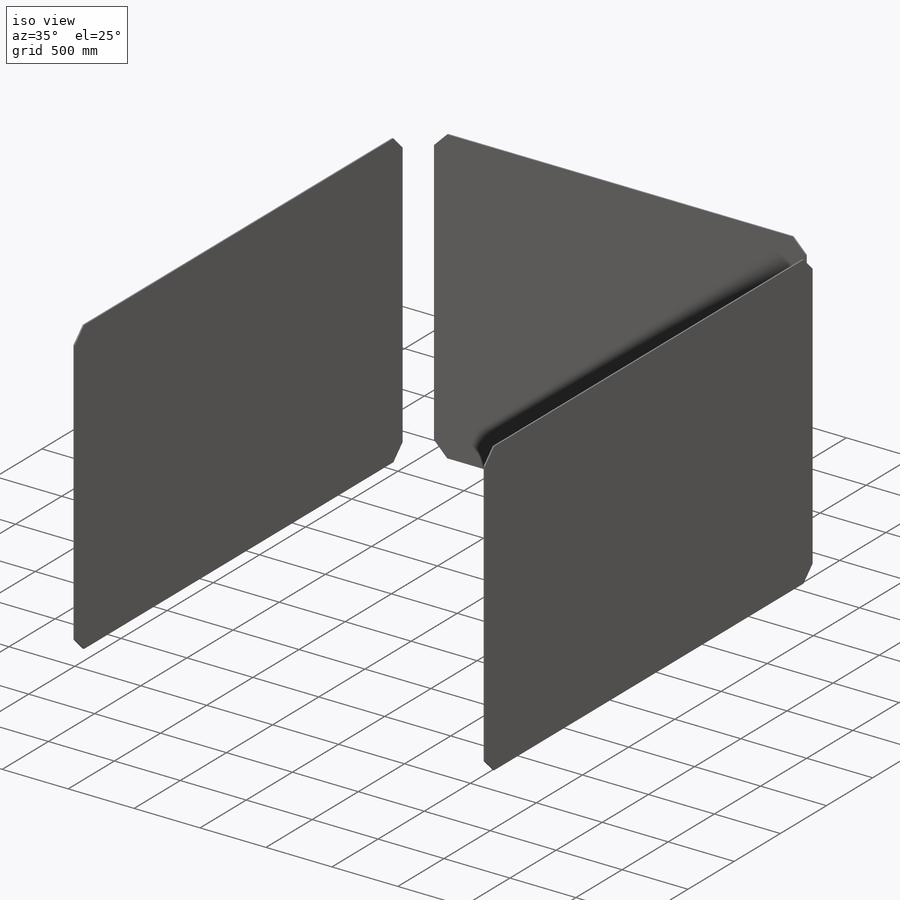
[diagram: iso view]
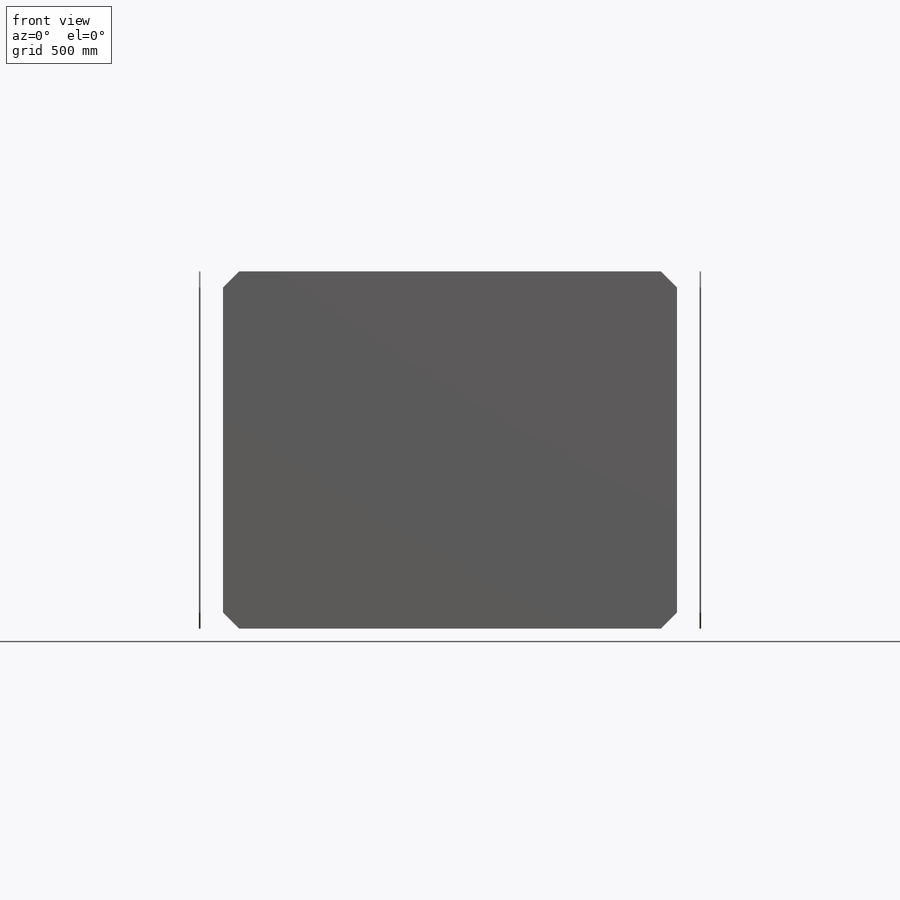
[diagram: front view]
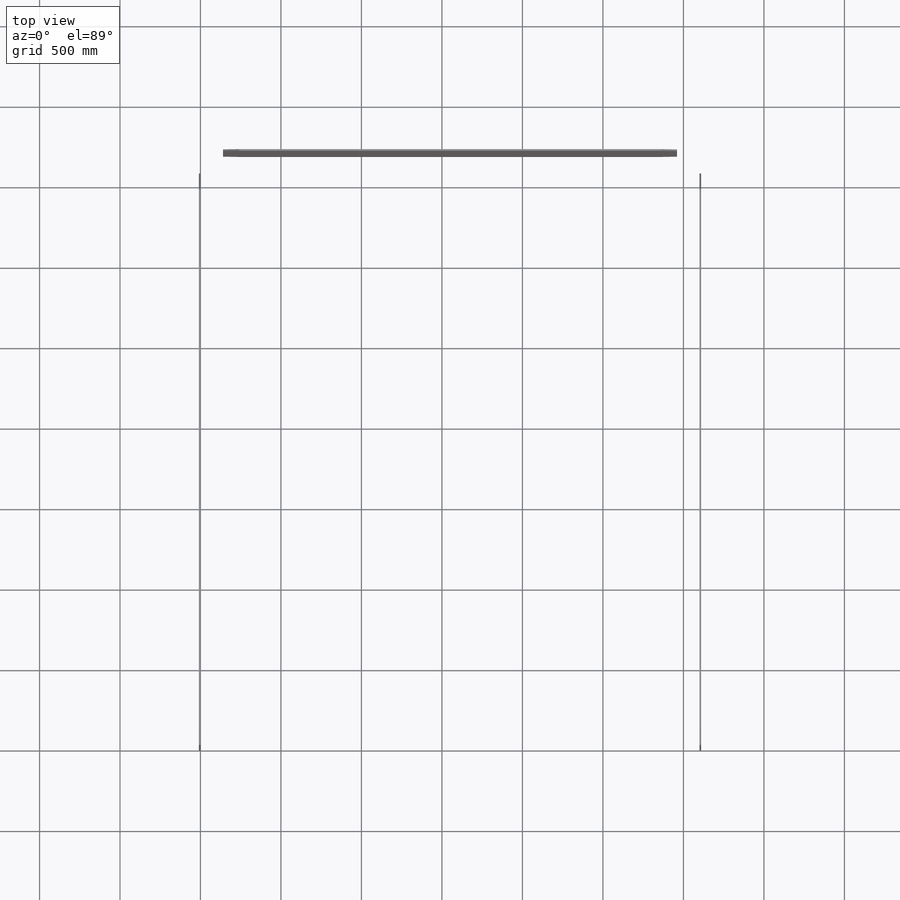
[diagram: top view]
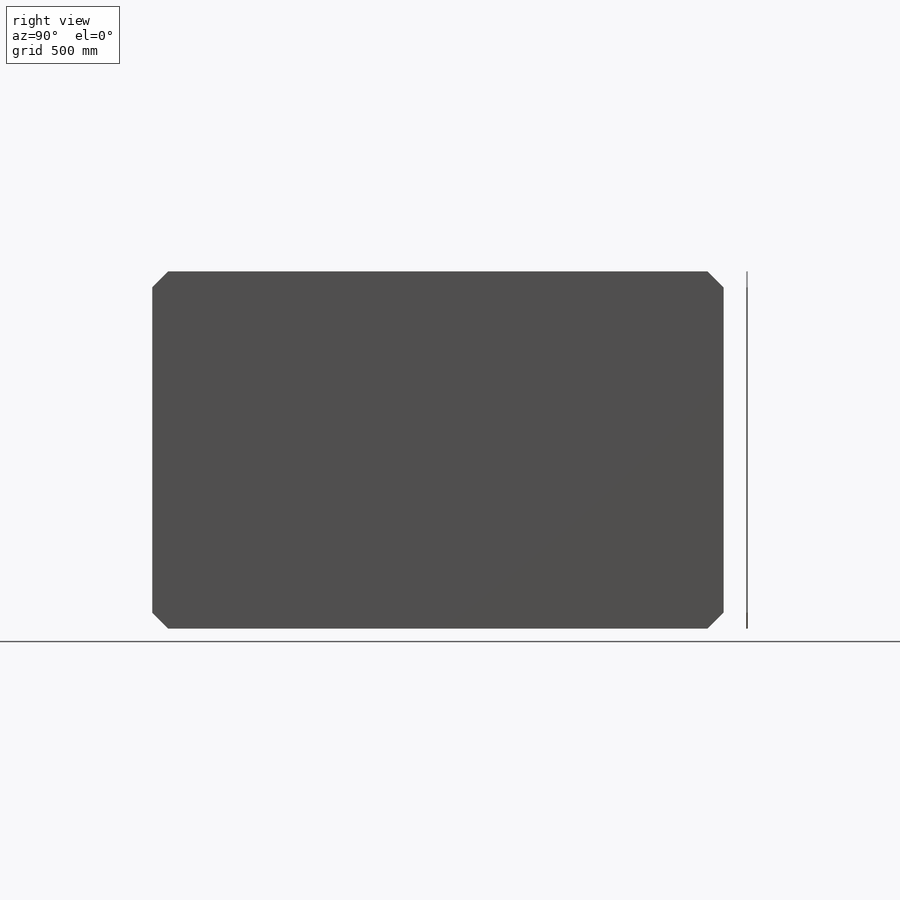
[diagram: right view]
SOLIDWORKS PART (.sldprt)
format: sldprt  version: not decoded by parser v0  size: 410,112 bytes
history: native  units: mm
features: sketch x4, plane x3, chamfer x3, cut_extrude x2, material x1, extrude x1 (+10 scaffold rows collapsed)
feature tree (24):
  scaffold x10  (default folders/planes/origin — collapsed)
  material  "Matériau <non spécifié>"
  plane  "Plan de face"
  plane  "Plan de dessus"
  plane  "Plan de droite"
  sketch  "Esquisse1"  dims[c1.D1=2500.0mm c1.D2=3100.0mm c2.D1=3700.0mm c2.D5=10.0mm c2.D6=1.0mm c2.D7=5.0mm]
  sketch  "Esquisse3"
  extrude  "Boss.-Extru.1"  Depth=10mm
  sketch  "Esquisse2"  dims[D1=150.0mm D2=150.0mm D3=200.0mm D4=200.0mm D5=1260.0mm]
  cut_extrude  "Enlèv. mat.-Extru.1"  Depth=4000mm
  sketch  "Esquisse4"  dims[D1=150.0mm D2=150.0mm]
  cut_extrude  "Enlèv. mat.-Extru.2"  Depth=3025.2mm
  chamfer  "Chanfrein1"  Distance=100mm Angle=45deg
  chamfer  "Chanfrein2"  Distance=100mm Angle=45deg
  chamfer  "Chanfrein3"  Distance=100mm Angle=45deg
decode coverage: 9 of 10 modeling features carry decoded parameters
note: suppression state not decoded; provenance and decode notes live in map.json
